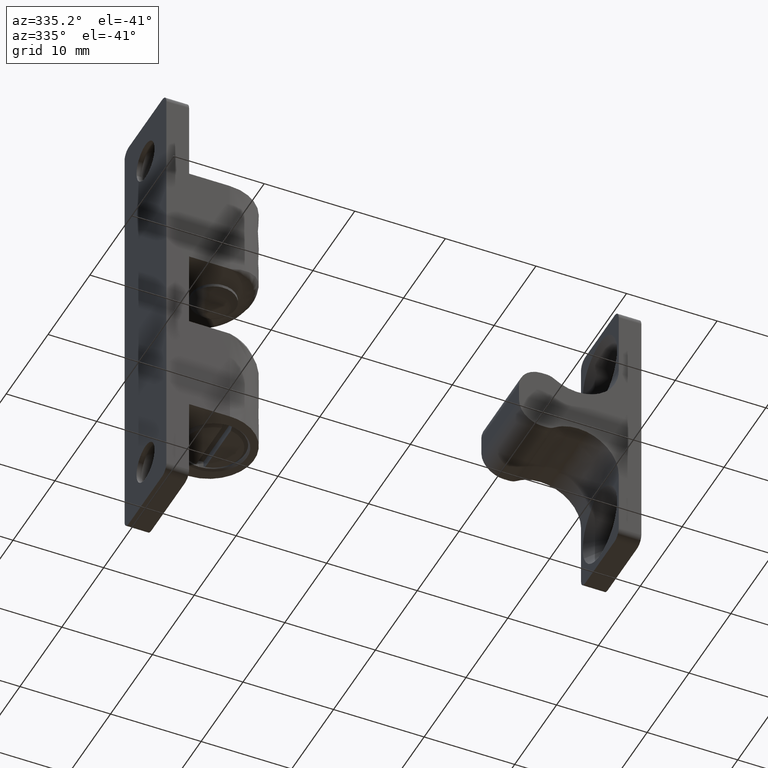
[diagram: clean part render]
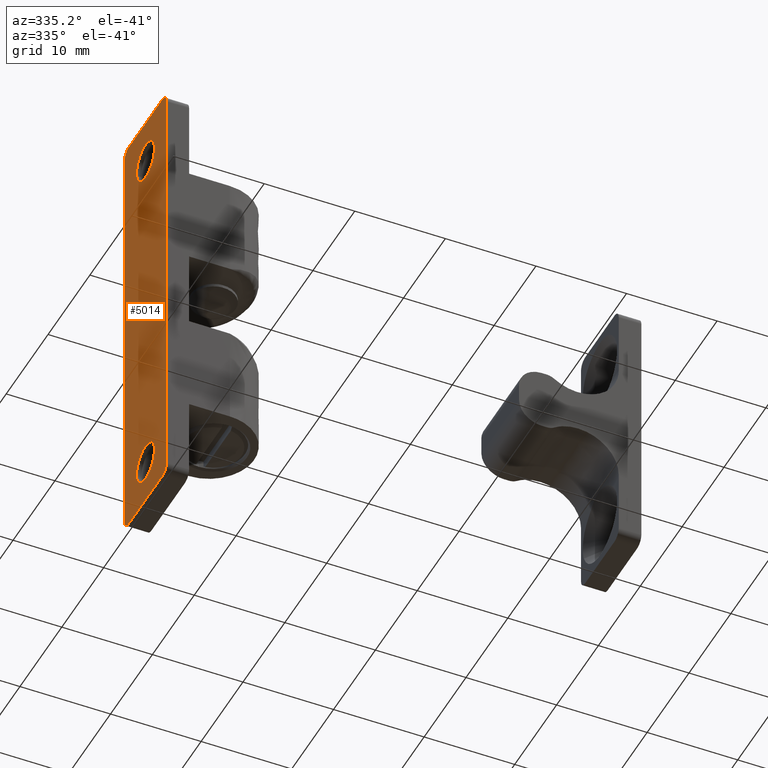
[diagram: same view with one face highlighted and labeled with its STEP entity id]
A machine part, auxiliary view. The second image highlights one B-rep face of the part: STEP entity #5014.
In plain terms, the highlighted face is a freeform B-spline surface patch.
Its self-contained STEP definition (entity closure, byte-faithful):
#3530=CARTESIAN_POINT('',(18.187463894944798,1.156379205914443,1.491110E-017));
#3531=VERTEX_POINT('',#3530);
#3537=CARTESIAN_POINT('',(22.149999999999999,0.0,0.0));
#3538=VERTEX_POINT('',#3537);
#3539=CARTESIAN_POINT('',(22.149999999999999,0.0,0.0));
#3540=CARTESIAN_POINT('',(22.150000000000006,2.150000000000000,0.0));
#3541=CARTESIAN_POINT('',(20.0,2.150000000000000,0.0));
#3542=CARTESIAN_POINT('',(18.821383639576240,2.150000000000000,0.0));
#3543=CARTESIAN_POINT('',(18.187463894944795,1.156379205914443,1.491110E-017));
#3551=(BOUNDED_CURVE()B_SPLINE_CURVE(2,(#3539,#3540,#3541,#3542,#3543),.UNSPECIFIED.,.F.,.U.)B_SPLINE_CURVE_WITH_KNOTS((3,2,3),(0.0,0.250000000000000,0.407950112626710),.UNSPECIFIED.)CURVE()GEOMETRIC_REPRESENTATION_ITEM()RATIONAL_B_SPLINE_CURVE((1.0,0.707106781186547,1.0,0.814949932403263,0.863729296954404))REPRESENTATION_ITEM(''));
#3552=EDGE_CURVE('',#3538,#3531,#3551,.T.);
#3554=CARTESIAN_POINT('',(19.831312944094041,-2.143372267519056,1.561251E-017));
#3555=VERTEX_POINT('',#3554);
#3556=CARTESIAN_POINT('',(19.831312944094041,-2.143372267519056,1.561251E-017));
#3557=CARTESIAN_POINT('',(19.915526269842001,-2.150000000000000,0.0));
#3558=CARTESIAN_POINT('',(20.0,-2.150000000000000,0.0));
#3559=CARTESIAN_POINT('',(22.150000000000006,-2.150000000000000,0.0));
#3560=CARTESIAN_POINT('',(22.149999999999999,0.0,0.0));
#3568=(BOUNDED_CURVE()B_SPLINE_CURVE(2,(#3556,#3557,#3558,#3559,#3560),.UNSPECIFIED.,.F.,.U.)B_SPLINE_CURVE_WITH_KNOTS((3,2,3),(0.736331300618196,0.750000000000000,1.0),.UNSPECIFIED.)CURVE()GEOMETRIC_REPRESENTATION_ITEM()RATIONAL_B_SPLINE_CURVE((0.969723356141408,0.983986122564280,1.0,0.707106781186547,1.0))REPRESENTATION_ITEM(''));
#3569=EDGE_CURVE('',#3555,#3538,#3568,.T.);
#3673=CARTESIAN_POINT('',(17.850000000000001,0.0,0.0));
#3674=VERTEX_POINT('',#3673);
#3675=CARTESIAN_POINT('',(17.850000000000001,0.0,0.0));
#3676=CARTESIAN_POINT('',(17.850000000000005,-1.987439556895687,0.0));
#3677=CARTESIAN_POINT('',(19.831312944094041,-2.143372267519057,1.561251E-017));
#3685=(BOUNDED_CURVE()B_SPLINE_CURVE(2,(#3675,#3676,#3677),.UNSPECIFIED.,.F.,.U.)B_SPLINE_CURVE_WITH_KNOTS((3,3),(0.500000000000000,0.736331300618196),.UNSPECIFIED.)CURVE()GEOMETRIC_REPRESENTATION_ITEM()RATIONAL_B_SPLINE_CURVE((1.0,0.723120658622268,0.969723356141406))REPRESENTATION_ITEM(''));
#3686=EDGE_CURVE('',#3674,#3555,#3685,.T.);
#3688=CARTESIAN_POINT('',(18.187463894944798,1.156379205914443,1.491110E-017));
#3689=CARTESIAN_POINT('',(17.850000000000005,0.627430319071992,0.0));
#3690=CARTESIAN_POINT('',(17.850000000000001,0.0,0.0));
#3698=(BOUNDED_CURVE()B_SPLINE_CURVE(2,(#3688,#3689,#3690),.UNSPECIFIED.,.F.,.U.)B_SPLINE_CURVE_WITH_KNOTS((3,3),(0.407950112626710,0.500000000000000),.UNSPECIFIED.)CURVE()GEOMETRIC_REPRESENTATION_ITEM()RATIONAL_B_SPLINE_CURVE((0.863729296954405,0.892156848783285,1.0))REPRESENTATION_ITEM(''));
#3699=EDGE_CURVE('',#3531,#3674,#3698,.T.);
#3868=CARTESIAN_POINT('',(-19.754682081532220,2.135958594841292,-1.664197E-017));
#3869=VERTEX_POINT('',#3868);
#3875=CARTESIAN_POINT('',(-17.850000000000001,0.0,0.0));
#3876=VERTEX_POINT('',#3875);
#3877=CARTESIAN_POINT('',(-19.754682081532227,2.135958594841292,-1.664197E-017));
#3878=CARTESIAN_POINT('',(-17.850000000000001,1.917203116756776,0.0));
#3879=CARTESIAN_POINT('',(-17.850000000000001,0.0,0.0));
#3887=(BOUNDED_CURVE()B_SPLINE_CURVE(2,(#3877,#3878,#3879),.UNSPECIFIED.,.F.,.U.)B_SPLINE_CURVE_WITH_KNOTS((3,3),(0.269767873874765,0.500000000000000),.UNSPECIFIED.)CURVE()GEOMETRIC_REPRESENTATION_ITEM()RATIONAL_B_SPLINE_CURVE((0.957343503698117,0.730266286019661,1.0))REPRESENTATION_ITEM(''));
#3888=EDGE_CURVE('',#3869,#3876,#3887,.T.);
#3890=CARTESIAN_POINT('',(-19.868745639914739,-2.145989816601795,1.561251E-017));
#3891=VERTEX_POINT('',#3890);
#3892=CARTESIAN_POINT('',(-17.850000000000001,0.0,0.0));
#3893=CARTESIAN_POINT('',(-17.850000000000009,-2.022518043686107,0.0));
#3894=CARTESIAN_POINT('',(-19.868745639914735,-2.145989816601795,1.561251E-017));
#3902=(BOUNDED_CURVE()B_SPLINE_CURVE(2,(#3892,#3893,#3894),.UNSPECIFIED.,.F.,.U.)B_SPLINE_CURVE_WITH_KNOTS((3,3),(0.500000000000000,0.739332962228247),.UNSPECIFIED.)CURVE()GEOMETRIC_REPRESENTATION_ITEM()RATIONAL_B_SPLINE_CURVE((1.0,0.719603993299241,0.976072041643794))REPRESENTATION_ITEM(''));
#3903=EDGE_CURVE('',#3876,#3891,#3902,.T.);
#4002=CARTESIAN_POINT('',(-22.149999999999999,0.0,0.0));
#4003=VERTEX_POINT('',#4002);
#4004=CARTESIAN_POINT('',(-19.868745639914739,-2.145989816601796,1.561251E-017));
#4005=CARTESIAN_POINT('',(-19.934311558822472,-2.150000000000000,0.0));
#4006=CARTESIAN_POINT('',(-20.0,-2.150000000000000,0.0));
#4007=CARTESIAN_POINT('',(-22.150000000000006,-2.150000000000000,0.0));
#4008=CARTESIAN_POINT('',(-22.149999999999999,0.0,0.0));
#4016=(BOUNDED_CURVE()B_SPLINE_CURVE(2,(#4004,#4005,#4006,#4007,#4008),.UNSPECIFIED.,.F.,.U.)B_SPLINE_CURVE_WITH_KNOTS((3,2,3),(0.739332962228248,0.750000000000000,1.0),.UNSPECIFIED.)CURVE()GEOMETRIC_REPRESENTATION_ITEM()RATIONAL_B_SPLINE_CURVE((0.976072041643796,0.987502787887308,1.0,0.707106781186547,1.0))REPRESENTATION_ITEM(''));
#4017=EDGE_CURVE('',#3891,#4003,#4016,.T.);
#4019=CARTESIAN_POINT('',(-22.149999999999999,0.0,0.0));
#4020=CARTESIAN_POINT('',(-22.150000000000006,2.150000000000000,0.0));
#4021=CARTESIAN_POINT('',(-20.0,2.150000000000000,0.0));
#4022=CARTESIAN_POINT('',(-19.876939192706946,2.150000000000000,0.0));
#4023=CARTESIAN_POINT('',(-19.754682081532220,2.135958594841292,-1.664197E-017));
#4031=(BOUNDED_CURVE()B_SPLINE_CURVE(2,(#4019,#4020,#4021,#4022,#4023),.UNSPECIFIED.,.F.,.U.)B_SPLINE_CURVE_WITH_KNOTS((3,2,3),(0.0,0.250000000000000,0.269767873874765),.UNSPECIFIED.)CURVE()GEOMETRIC_REPRESENTATION_ITEM()RATIONAL_B_SPLINE_CURVE((1.0,0.707106781186547,1.0,0.976840495166887,0.957343503698117))REPRESENTATION_ITEM(''));
#4032=EDGE_CURVE('',#4003,#3869,#4031,.T.);
#4340=CARTESIAN_POINT('',(-24.0,5.0,0.0));
#4341=VERTEX_POINT('',#4340);
#4347=CARTESIAN_POINT('',(-25.0,4.0,0.0));
#4348=VERTEX_POINT('',#4347);
#4349=CARTESIAN_POINT('',(-25.0,4.0,0.0));
#4350=CARTESIAN_POINT('',(-25.0,5.000000000000001,0.0));
#4351=CARTESIAN_POINT('',(-24.0,5.0,0.0));
#4359=(BOUNDED_CURVE()B_SPLINE_CURVE(2,(#4349,#4350,#4351),.UNSPECIFIED.,.F.,.U.)CURVE()GEOMETRIC_REPRESENTATION_ITEM()QUASI_UNIFORM_CURVE()RATIONAL_B_SPLINE_CURVE((1.0,0.707106781186548,1.0))REPRESENTATION_ITEM(''));
#4360=EDGE_CURVE('',#4348,#4341,#4359,.T.);
#4401=CARTESIAN_POINT('',(-25.0,-4.0,0.0));
#4402=VERTEX_POINT('',#4401);
#4408=CARTESIAN_POINT('',(-24.0,-5.0,0.0));
#4409=VERTEX_POINT('',#4408);
#4410=CARTESIAN_POINT('',(-24.0,-5.0,0.0));
#4411=CARTESIAN_POINT('',(-25.0,-5.000000000000001,0.0));
#4412=CARTESIAN_POINT('',(-25.0,-4.0,0.0));
#4420=(BOUNDED_CURVE()B_SPLINE_CURVE(2,(#4410,#4411,#4412),.UNSPECIFIED.,.F.,.U.)CURVE()GEOMETRIC_REPRESENTATION_ITEM()QUASI_UNIFORM_CURVE()RATIONAL_B_SPLINE_CURVE((1.0,0.707106781186548,1.0))REPRESENTATION_ITEM(''));
#4421=EDGE_CURVE('',#4409,#4402,#4420,.T.);
#4445=CARTESIAN_POINT('',(24.0,5.0,0.0));
#4446=VERTEX_POINT('',#4445);
#4447=CARTESIAN_POINT('',(25.0,4.0,0.0));
#4448=VERTEX_POINT('',#4447);
#4449=CARTESIAN_POINT('',(24.0,5.0,0.0));
#4450=CARTESIAN_POINT('',(25.0,5.000000000000001,0.0));
#4451=CARTESIAN_POINT('',(25.0,4.0,0.0));
#4459=(BOUNDED_CURVE()B_SPLINE_CURVE(2,(#4449,#4450,#4451),.UNSPECIFIED.,.F.,.U.)CURVE()GEOMETRIC_REPRESENTATION_ITEM()QUASI_UNIFORM_CURVE()RATIONAL_B_SPLINE_CURVE((1.0,0.707106781186548,1.0))REPRESENTATION_ITEM(''));
#4460=EDGE_CURVE('',#4446,#4448,#4459,.T.);
#4506=CARTESIAN_POINT('',(25.0,-4.0,0.0));
#4507=VERTEX_POINT('',#4506);
#4508=CARTESIAN_POINT('',(24.0,-5.0,0.0));
#4509=VERTEX_POINT('',#4508);
#4510=CARTESIAN_POINT('',(25.0,-4.0,0.0));
#4511=CARTESIAN_POINT('',(25.0,-5.000000000000001,0.0));
#4512=CARTESIAN_POINT('',(24.0,-5.0,0.0));
#4520=(BOUNDED_CURVE()B_SPLINE_CURVE(2,(#4510,#4511,#4512),.UNSPECIFIED.,.F.,.U.)CURVE()GEOMETRIC_REPRESENTATION_ITEM()QUASI_UNIFORM_CURVE()RATIONAL_B_SPLINE_CURVE((1.0,0.707106781186548,1.0))REPRESENTATION_ITEM(''));
#4521=EDGE_CURVE('',#4507,#4509,#4520,.T.);
#4776=CARTESIAN_POINT('',(-24.0,5.0,0.0));
#4777=CARTESIAN_POINT('',(24.0,5.0,0.0));
#4778=QUASI_UNIFORM_CURVE('',1,(#4776,#4777),.UNSPECIFIED.,.F.,.U.);
#4779=EDGE_CURVE('',#4341,#4446,#4778,.T.);
#4828=CARTESIAN_POINT('',(-24.0,-5.0,0.0));
#4829=CARTESIAN_POINT('',(24.0,-5.0,0.0));
#4830=QUASI_UNIFORM_CURVE('',1,(#4828,#4829),.UNSPECIFIED.,.F.,.U.);
#4831=EDGE_CURVE('',#4409,#4509,#4830,.T.);
#4974=CARTESIAN_POINT('',(25.0,-4.0,0.0));
#4975=CARTESIAN_POINT('',(25.0,4.0,0.0));
#4976=QUASI_UNIFORM_CURVE('',1,(#4974,#4975),.UNSPECIFIED.,.F.,.U.);
#4977=EDGE_CURVE('',#4507,#4448,#4976,.T.);
#4983=CARTESIAN_POINT('',(-27.497499903090301,-5.499499980618060,0.0));
#4984=CARTESIAN_POINT('',(27.497501244194812,-5.499499980618060,0.0));
#4985=CARTESIAN_POINT('',(-27.497499903090301,5.499500248838961,0.0));
#4986=CARTESIAN_POINT('',(27.497501244194812,5.499500248838961,0.0));
#4987=B_SPLINE_SURFACE_WITH_KNOTS('',1,1,((#4983,#4985),(#4984,#4986)),.UNSPECIFIED.,.F.,.F.,.U.,(2,2),(2,2),(0.0,54.995001147285109),(0.0,10.999000229457019),.UNSPECIFIED.);
#4988=ORIENTED_EDGE('',*,*,#4977,.F.);
#4989=ORIENTED_EDGE('',*,*,#4521,.T.);
#4990=ORIENTED_EDGE('',*,*,#4831,.F.);
#4991=ORIENTED_EDGE('',*,*,#4421,.T.);
#4992=CARTESIAN_POINT('',(-25.0,-4.0,0.0));
#4993=CARTESIAN_POINT('',(-25.0,4.0,0.0));
#4994=QUASI_UNIFORM_CURVE('',1,(#4992,#4993),.UNSPECIFIED.,.F.,.U.);
#4995=EDGE_CURVE('',#4402,#4348,#4994,.T.);
#4996=ORIENTED_EDGE('',*,*,#4995,.T.);
#4997=ORIENTED_EDGE('',*,*,#4360,.T.);
#4998=ORIENTED_EDGE('',*,*,#4779,.T.);
#4999=ORIENTED_EDGE('',*,*,#4460,.T.);
#5000=EDGE_LOOP('',(#4988,#4989,#4990,#4991,#4996,#4997,#4998,#4999));
#5001=FACE_OUTER_BOUND('',#5000,.T.);
#5002=ORIENTED_EDGE('',*,*,#3903,.F.);
#5003=ORIENTED_EDGE('',*,*,#3888,.F.);
#5004=ORIENTED_EDGE('',*,*,#4032,.F.);
#5005=ORIENTED_EDGE('',*,*,#4017,.F.);
#5006=EDGE_LOOP('',(#5002,#5003,#5004,#5005));
#5007=FACE_BOUND('',#5006,.T.);
#5008=ORIENTED_EDGE('',*,*,#3686,.T.);
#5009=ORIENTED_EDGE('',*,*,#3569,.T.);
#5010=ORIENTED_EDGE('',*,*,#3552,.T.);
#5011=ORIENTED_EDGE('',*,*,#3699,.T.);
#5012=EDGE_LOOP('',(#5008,#5009,#5010,#5011));
#5013=FACE_BOUND('',#5012,.T.);
#5014=ADVANCED_FACE('',(#5001,#5007,#5013),#4987,.F.);